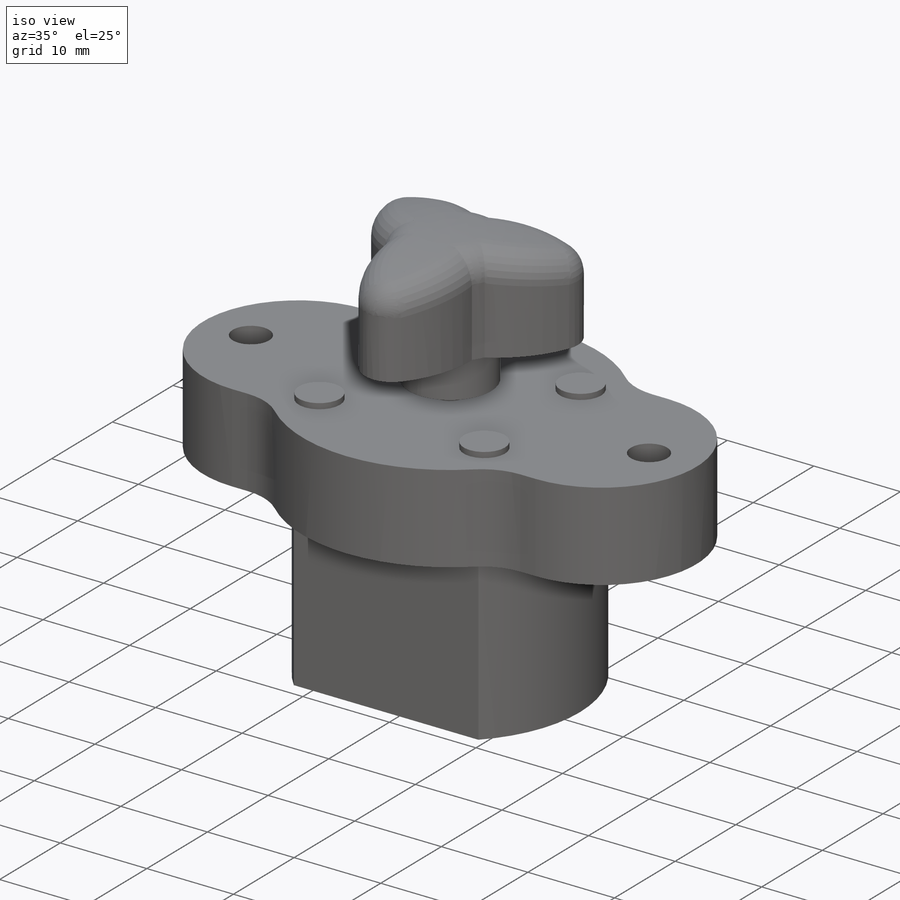
[diagram: iso view]
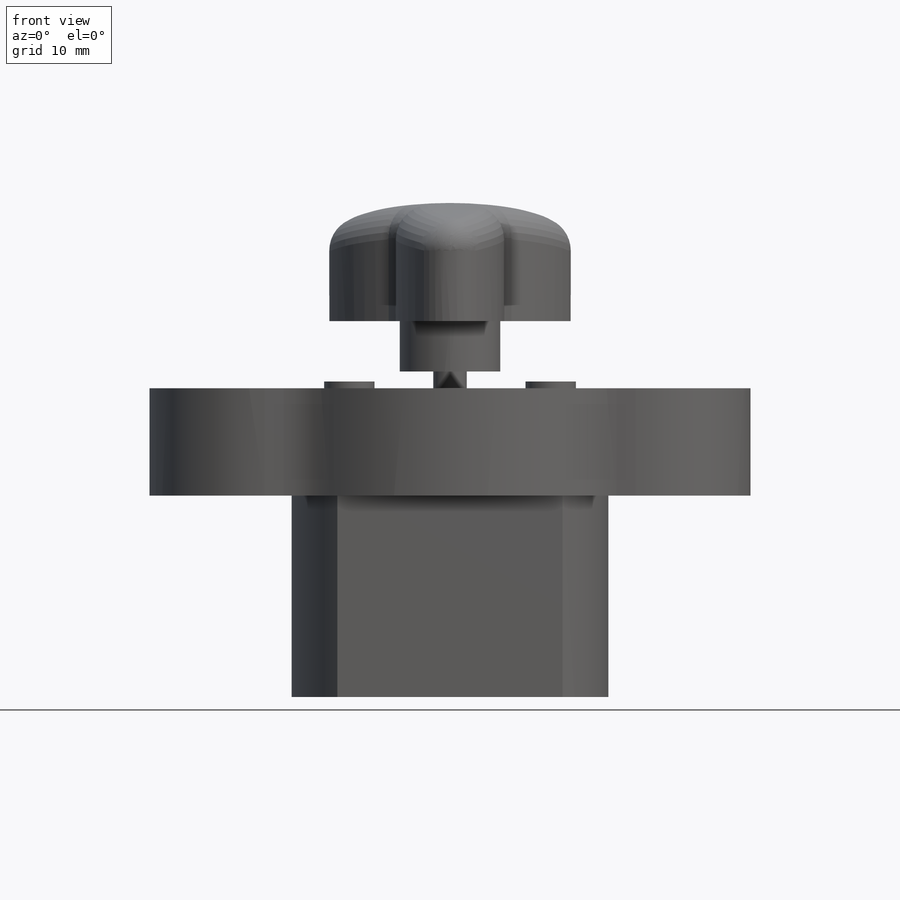
[diagram: front view]
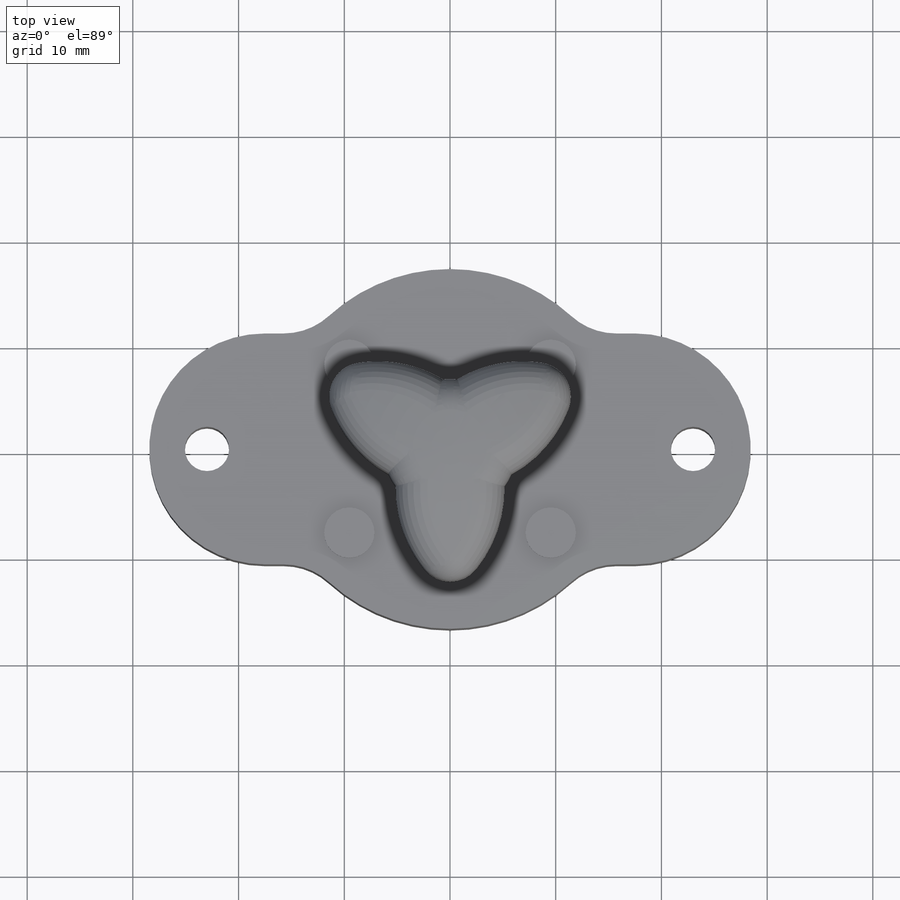
[diagram: top view]
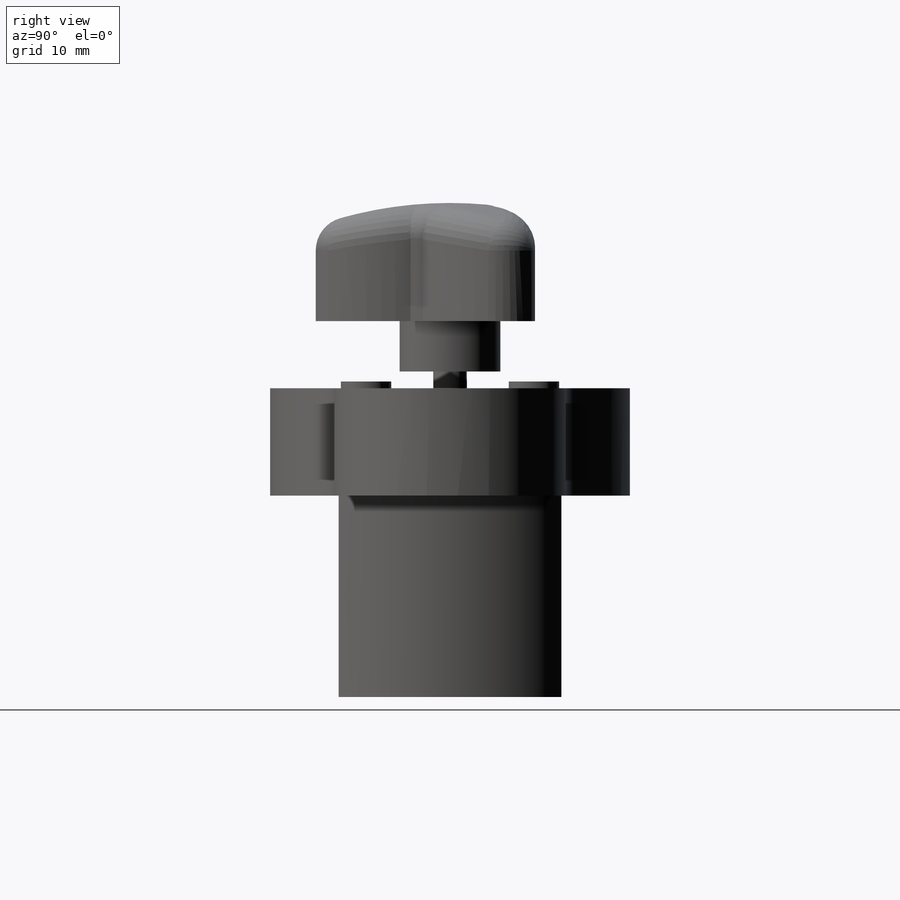
[diagram: right view]
SOLIDWORKS PART (.sldprt)
format: sldprt  version: not decoded by parser v0  size: 423,936 bytes
history: native  units: mm
features: sketch x9, extrude x6, material x1, cut_extrude x1, cut_revolve x1, fillet x1 (+13 scaffold rows collapsed)
feature tree (32):
  scaffold x13  (default folders/planes/origin — collapsed)
  material  "Material <not specified>"
  sketch  "Sketch0"  dims[D1=29.21mm D2=46.736mm D3=35.56mm D4=29.972mm D5=0.762mm D6=19.05mm D7=19.05mm D8=10.16mm]
  sketch  "Sketch1"  dims[D1=21.082mm]
  extrude  "Boss-Extrude1"  [1 undecoded]
  sketch  "Sketch2"  dims[c1.D2=34.036mm c1.D3=10.922mm c1.D4=10.922mm c1.D6=4.191mm c1.D7=6.35mm c2.D4=56.896mm c2.D5=45.974mm c2.D1=0.0mm c2.D2=0.254mm]
  extrude  "Boss-Extrude2"  [1 undecoded]
  sketch  "Sketch3"
  cut_extrude  "Cut-Extrude1"  [1 undecoded]
  sketch  "Sketch4"  dims[D3=4.7625mm D1=19.05mm D2=15.875mm]
  extrude  "Boss-Extrude3"  Depth=0.635mm
  sketch  "Sketch5"  dims[D1=3.175mm]
  extrude  "Boss-Extrude4"  Depth=1.5875mm
  sketch  "Sketch6"  dims[D1=9.525mm]
  extrude  "Boss-Extrude5"  [1 undecoded]
  sketch  "Sketch7"  dims[c1.D1=25.4mm c1.D4=12.7mm c1.D5=3.175mm c1.D2=12.7mm c2.D2=120.0deg c2.D3=12.7mm c3.D3=120.0deg]
  extrude  "Boss-Extrude6"  [1 undecoded]
  sketch  "Sketch8"  dims[D1=38.1mm]
  cut_revolve  "Cut-Revolve1"  Angle=360deg
  fillet  "Fillet1"  Radius=3.175mm
decode coverage: 12 of 18 modeling features carry decoded parameters
note: 5 parameter values undecoded
summary: no parameter record found for 5 features
note: suppression state not decoded; provenance and decode notes live in map.json
